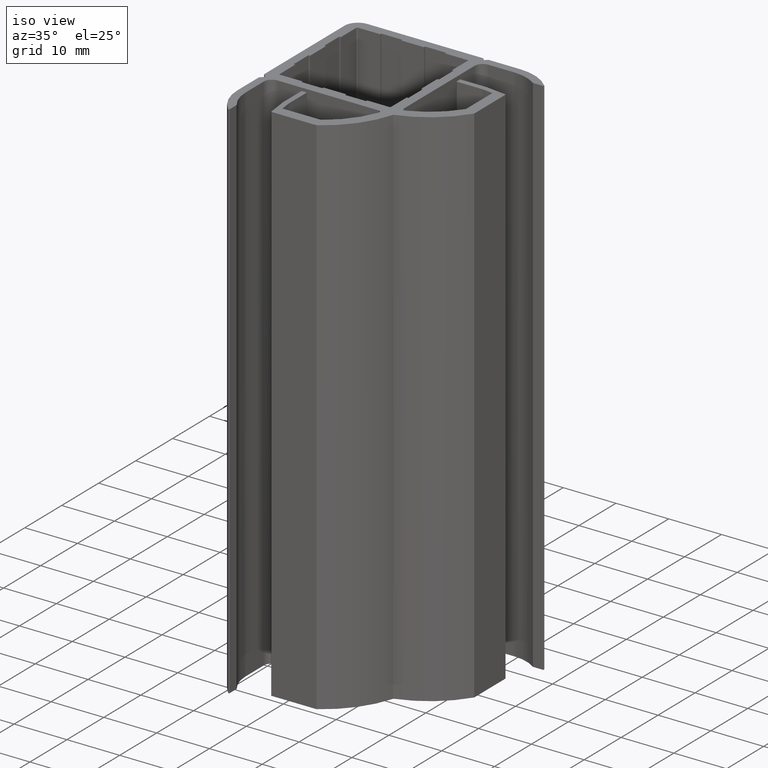
[diagram: clean part render]
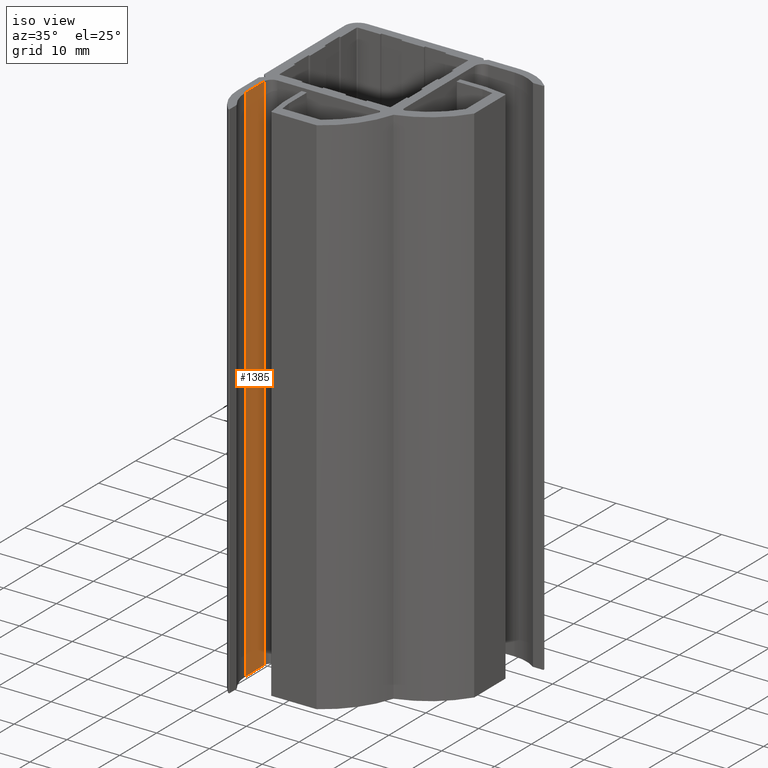
[diagram: same view with one face highlighted and labeled with its STEP entity id]
A machine part, iso view. The second image highlights one B-rep face of the part: STEP entity #1385.
In plain terms, the highlighted planar face has unit normal (1, 0, 0).
Its self-contained STEP definition (entity closure, byte-faithful):
#1327=CARTESIAN_POINT('',(1.500000000000000,-18.103553390593333,-100.0));
#1328=VERTEX_POINT('',#1327);
#1336=CARTESIAN_POINT('',(1.500000000000000,-18.103553390593333,0.0));
#1337=VERTEX_POINT('',#1336);
#1338=CARTESIAN_POINT('',(1.500000000000000,-18.103553390593333,-100.0));
#1339=DIRECTION('',(0.0,0.0,1.0));
#1340=VECTOR('',#1339,100.0);
#1341=LINE('',#1338,#1340);
#1342=EDGE_CURVE('',#1328,#1337,#1341,.T.);
#1355=CARTESIAN_POINT('',(1.500000000000000,-18.103553390593333,-100.0));
#1356=DIRECTION('',(1.0,0.0,0.0));
#1357=DIRECTION('',(0.0,1.0,0.0));
#1358=AXIS2_PLACEMENT_3D('',#1355,#1356,#1357);
#1359=PLANE('',#1358);
#1360=CARTESIAN_POINT('',(1.500000000000910,-13.103553390593333,-100.0));
#1361=VERTEX_POINT('',#1360);
#1362=CARTESIAN_POINT('',(1.500000000000000,-18.103553390593333,-100.0));
#1363=DIRECTION('',(0.0,1.0,0.0));
#1364=VECTOR('',#1363,5.0);
#1365=LINE('',#1362,#1364);
#1366=EDGE_CURVE('',#1328,#1361,#1365,.T.);
#1367=ORIENTED_EDGE('',*,*,#1366,.T.);
#1368=CARTESIAN_POINT('',(1.500000000000910,-13.103553390593333,0.0));
#1369=VERTEX_POINT('',#1368);
#1370=CARTESIAN_POINT('',(1.500000000000910,-13.103553390593333,-100.0));
#1371=DIRECTION('',(0.0,0.0,1.0));
#1372=VECTOR('',#1371,100.0);
#1373=LINE('',#1370,#1372);
#1374=EDGE_CURVE('',#1361,#1369,#1373,.T.);
#1375=ORIENTED_EDGE('',*,*,#1374,.T.);
#1376=CARTESIAN_POINT('',(1.500000000000000,-18.103553390593333,0.0));
#1377=DIRECTION('',(0.0,1.0,0.0));
#1378=VECTOR('',#1377,5.0);
#1379=LINE('',#1376,#1378);
#1380=EDGE_CURVE('',#1337,#1369,#1379,.T.);
#1381=ORIENTED_EDGE('',*,*,#1380,.F.);
#1382=ORIENTED_EDGE('',*,*,#1342,.F.);
#1383=EDGE_LOOP('',(#1367,#1375,#1381,#1382));
#1384=FACE_OUTER_BOUND('',#1383,.T.);
#1385=ADVANCED_FACE('',(#1384),#1359,.T.);